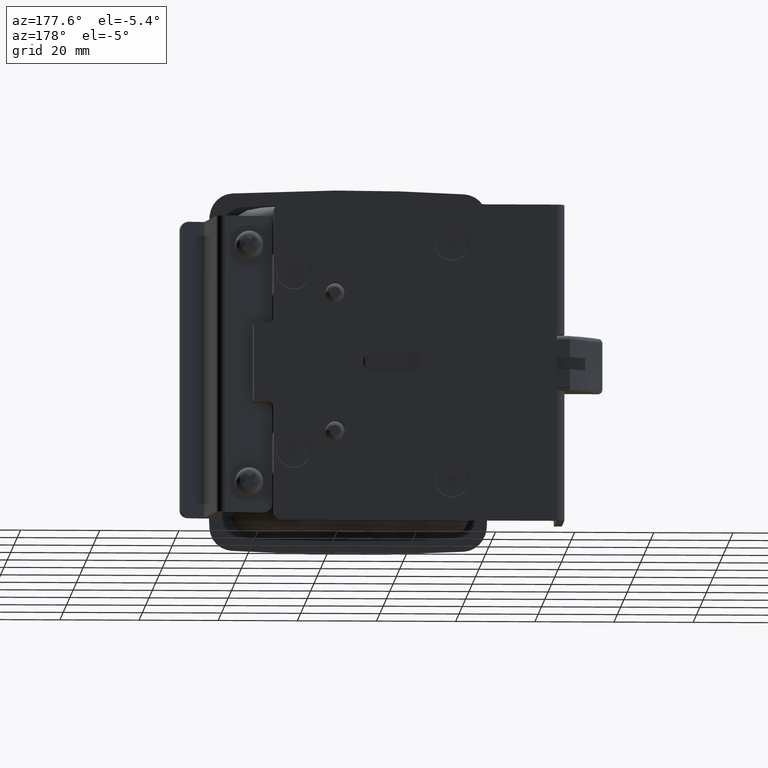
[diagram: clean part render]
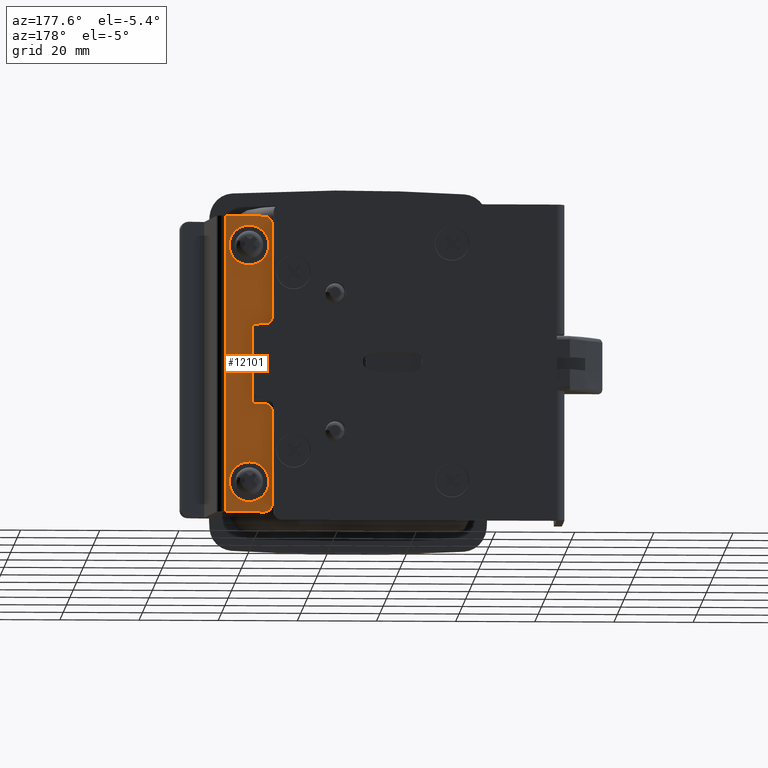
[diagram: same view with one face highlighted and labeled with its STEP entity id]
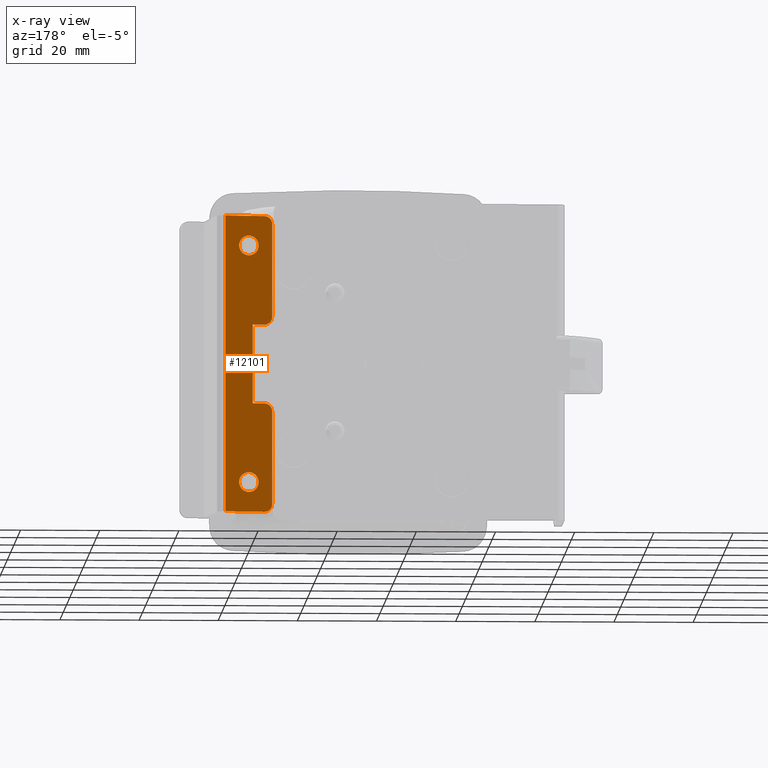
[diagram: x-ray of the same camera — body ghosted, the highlighted face saturated]
A machine part, auxiliary view. The second image highlights one B-rep face of the part: STEP entity #12101.
The next image is the same camera in x-ray: the body ghosted, the highlighted face saturated — about 0% of this face is hidden behind the body in this view.
In plain terms, the highlighted face is a freeform B-spline surface patch.
Its self-contained STEP definition (entity closure, byte-faithful):
#10966=CARTESIAN_POINT('',(76.881491074795775,-7.513873134960039,-30.000000000013749));
#10967=VERTEX_POINT('',#10966);
#10968=CARTESIAN_POINT('',(79.048053428642433,-7.196530977134515,-27.519334465487059));
#10969=VERTEX_POINT('',#10968);
#10970=CARTESIAN_POINT('',(76.881491074795775,-7.513873134960039,-30.000000000013749));
#10971=CARTESIAN_POINT('',(76.881491074795775,-7.513873134960039,-27.793253500170700));
#10972=CARTESIAN_POINT('',(79.048053428642433,-7.196530977134515,-27.519334465487052));
#10980=(BOUNDED_CURVE()B_SPLINE_CURVE(2,(#10970,#10971,#10972),.UNSPECIFIED.,.F.,.U.)B_SPLINE_CURVE_WITH_KNOTS((3,3),(0.0,0.228526070988916),.UNSPECIFIED.)CURVE()GEOMETRIC_REPRESENTATION_ITEM()RATIONAL_B_SPLINE_CURVE((1.0,0.732265053941059,0.954005430196352))REPRESENTATION_ITEM(''));
#10981=EDGE_CURVE('',#10967,#10969,#10980,.T.);
#11022=CARTESIAN_POINT('',(79.376683229631098,-7.148395694996731,-32.499904807670013));
#11023=VERTEX_POINT('',#11022);
#11029=CARTESIAN_POINT('',(79.376683229631098,-7.148395694996731,-32.499904807670013));
#11030=CARTESIAN_POINT('',(79.365890429231499,-7.149976545213992,-32.500000000013756));
#11031=CARTESIAN_POINT('',(79.355097217366207,-7.151557455699730,-32.500000000013749));
#11032=CARTESIAN_POINT('',(76.881491074795775,-7.513873134960039,-32.500000000013749));
#11033=CARTESIAN_POINT('',(76.881491074795775,-7.513873134960039,-30.000000000013749));
#11041=(BOUNDED_CURVE()B_SPLINE_CURVE(2,(#11029,#11030,#11031,#11032,#11033),.UNSPECIFIED.,.F.,.U.)B_SPLINE_CURVE_WITH_KNOTS((3,2,3),(0.748460105597648,0.750000000000000,1.0),.UNSPECIFIED.)CURVE()GEOMETRIC_REPRESENTATION_ITEM()RATIONAL_B_SPLINE_CURVE((0.996414027944504,0.998195901487449,1.0,0.707106781186548,1.0))REPRESENTATION_ITEM(''));
#11042=EDGE_CURVE('',#11023,#10967,#11041,.T.);
#11069=CARTESIAN_POINT('',(81.828703359936640,-6.789241776439421,-30.000000000013749));
#11070=VERTEX_POINT('',#11069);
#11071=CARTESIAN_POINT('',(79.048053428642433,-7.196530977134516,-27.519334465487056));
#11072=CARTESIAN_POINT('',(79.200979365609655,-7.174131507883839,-27.500000000013753));
#11073=CARTESIAN_POINT('',(79.355097217366207,-7.151557455699730,-27.500000000013749));
#11074=CARTESIAN_POINT('',(81.828703359936640,-6.789241776439421,-27.500000000013749));
#11075=CARTESIAN_POINT('',(81.828703359936640,-6.789241776439421,-30.000000000013749));
#11083=(BOUNDED_CURVE()B_SPLINE_CURVE(2,(#11071,#11072,#11073,#11074,#11075),.UNSPECIFIED.,.F.,.U.)B_SPLINE_CURVE_WITH_KNOTS((3,2,3),(0.228526070988916,0.250000000000000,0.500000000000000),.UNSPECIFIED.)CURVE()GEOMETRIC_REPRESENTATION_ITEM()RATIONAL_B_SPLINE_CURVE((0.954005430196352,0.974841727245488,1.0,0.707106781186548,1.0))REPRESENTATION_ITEM(''));
#11084=EDGE_CURVE('',#10969,#11070,#11083,.T.);
#11086=CARTESIAN_POINT('',(81.828703359936640,-6.789241776439421,-30.000000000013749));
#11087=CARTESIAN_POINT('',(81.828703359936640,-6.789241776439421,-32.478278025553358));
#11088=CARTESIAN_POINT('',(79.376683229631098,-7.148395694996731,-32.499904807670006));
#11096=(BOUNDED_CURVE()B_SPLINE_CURVE(2,(#11086,#11087,#11088),.UNSPECIFIED.,.F.,.U.)B_SPLINE_CURVE_WITH_KNOTS((3,3),(0.500000000000000,0.748460105597648),.UNSPECIFIED.)CURVE()GEOMETRIC_REPRESENTATION_ITEM()RATIONAL_B_SPLINE_CURVE((1.0,0.708910879699099,0.996414027944504))REPRESENTATION_ITEM(''));
#11097=EDGE_CURVE('',#11070,#11023,#11096,.T.);
#11152=CARTESIAN_POINT('',(76.881491074795775,-7.513873134960039,29.999999999986251));
#11153=VERTEX_POINT('',#11152);
#11154=CARTESIAN_POINT('',(79.048053428642433,-7.196530977134517,32.480665534512937));
#11155=VERTEX_POINT('',#11154);
#11156=CARTESIAN_POINT('',(76.881491074795775,-7.513873134960039,29.999999999986251));
#11157=CARTESIAN_POINT('',(76.881491074795775,-7.513873134960040,32.206746499829293));
#11158=CARTESIAN_POINT('',(79.048053428642433,-7.196530977134517,32.480665534512951));
#11166=(BOUNDED_CURVE()B_SPLINE_CURVE(2,(#11156,#11157,#11158),.UNSPECIFIED.,.F.,.U.)B_SPLINE_CURVE_WITH_KNOTS((3,3),(0.0,0.228526070988915),.UNSPECIFIED.)CURVE()GEOMETRIC_REPRESENTATION_ITEM()RATIONAL_B_SPLINE_CURVE((1.0,0.732265053941060,0.954005430196350))REPRESENTATION_ITEM(''));
#11167=EDGE_CURVE('',#11153,#11155,#11166,.T.);
#11208=CARTESIAN_POINT('',(79.376683229631098,-7.148395694996731,27.500095192330001));
#11209=VERTEX_POINT('',#11208);
#11215=CARTESIAN_POINT('',(79.376683229631098,-7.148395694996731,27.500095192329994));
#11216=CARTESIAN_POINT('',(79.365890429231499,-7.149976545213992,27.499999999986247));
#11217=CARTESIAN_POINT('',(79.355097217366207,-7.151557455699730,27.499999999986251));
#11218=CARTESIAN_POINT('',(76.881491074795775,-7.513873134960039,27.499999999986258));
#11219=CARTESIAN_POINT('',(76.881491074795775,-7.513873134960039,29.999999999986251));
#11227=(BOUNDED_CURVE()B_SPLINE_CURVE(2,(#11215,#11216,#11217,#11218,#11219),.UNSPECIFIED.,.F.,.U.)B_SPLINE_CURVE_WITH_KNOTS((3,2,3),(0.748460105597648,0.750000000000000,1.0),.UNSPECIFIED.)CURVE()GEOMETRIC_REPRESENTATION_ITEM()RATIONAL_B_SPLINE_CURVE((0.996414027944504,0.998195901487449,1.0,0.707106781186548,1.0))REPRESENTATION_ITEM(''));
#11228=EDGE_CURVE('',#11209,#11153,#11227,.T.);
#11255=CARTESIAN_POINT('',(81.828703359936640,-6.789241776439421,29.999999999986251));
#11256=VERTEX_POINT('',#11255);
#11257=CARTESIAN_POINT('',(79.048053428642433,-7.196530977134517,32.480665534512944));
#11258=CARTESIAN_POINT('',(79.200979365609626,-7.174131507883840,32.499999999986251));
#11259=CARTESIAN_POINT('',(79.355097217366207,-7.151557455699730,32.499999999986251));
#11260=CARTESIAN_POINT('',(81.828703359936640,-6.789241776439421,32.499999999986258));
#11261=CARTESIAN_POINT('',(81.828703359936640,-6.789241776439421,29.999999999986251));
#11269=(BOUNDED_CURVE()B_SPLINE_CURVE(2,(#11257,#11258,#11259,#11260,#11261),.UNSPECIFIED.,.F.,.U.)B_SPLINE_CURVE_WITH_KNOTS((3,2,3),(0.228526070988915,0.250000000000000,0.500000000000000),.UNSPECIFIED.)CURVE()GEOMETRIC_REPRESENTATION_ITEM()RATIONAL_B_SPLINE_CURVE((0.954005430196350,0.974841727245487,1.0,0.707106781186548,1.0))REPRESENTATION_ITEM(''));
#11270=EDGE_CURVE('',#11155,#11256,#11269,.T.);
#11272=CARTESIAN_POINT('',(81.828703359936640,-6.789241776439421,29.999999999986251));
#11273=CARTESIAN_POINT('',(81.828703359936640,-6.789241776439421,27.521721974446645));
#11274=CARTESIAN_POINT('',(79.376683229631098,-7.148395694996731,27.500095192330001));
#11282=(BOUNDED_CURVE()B_SPLINE_CURVE(2,(#11272,#11273,#11274),.UNSPECIFIED.,.F.,.U.)B_SPLINE_CURVE_WITH_KNOTS((3,3),(0.500000000000000,0.748460105597648),.UNSPECIFIED.)CURVE()GEOMETRIC_REPRESENTATION_ITEM()RATIONAL_B_SPLINE_CURVE((1.0,0.708910879699099,0.996414027944504))REPRESENTATION_ITEM(''));
#11283=EDGE_CURVE('',#11256,#11209,#11282,.T.);
#11334=CARTESIAN_POINT('',(75.397327389259502,-7.731262542552380,9.999999999986239));
#11335=VERTEX_POINT('',#11334);
#11336=CARTESIAN_POINT('',(73.418442475203094,-8.021115085960631,11.999999999986240));
#11337=VERTEX_POINT('',#11336);
#11338=CARTESIAN_POINT('',(75.397327389259502,-7.731262542552380,9.999999999986239));
#11339=CARTESIAN_POINT('',(73.418442475203150,-8.021115085960627,9.999999999986239));
#11340=CARTESIAN_POINT('',(73.418442475203150,-8.021115085960627,11.999999999986240));
#11348=(BOUNDED_CURVE()B_SPLINE_CURVE(2,(#11338,#11339,#11340),.UNSPECIFIED.,.F.,.U.)CURVE()GEOMETRIC_REPRESENTATION_ITEM()QUASI_UNIFORM_CURVE()RATIONAL_B_SPLINE_CURVE((1.0,0.707106781186548,1.0))REPRESENTATION_ITEM(''));
#11349=EDGE_CURVE('',#11335,#11337,#11348,.T.);
#11395=CARTESIAN_POINT('',(73.418442475203094,-8.021115085960631,-12.000000000013779));
#11396=VERTEX_POINT('',#11395);
#11397=CARTESIAN_POINT('',(75.397327389254897,-7.731262542553050,-10.000000000013779));
#11398=VERTEX_POINT('',#11397);
#11399=CARTESIAN_POINT('',(73.418442475203094,-8.021115085960631,-12.000000000013779));
#11400=CARTESIAN_POINT('',(73.418442475197750,-8.021115085943228,-10.000000000015596));
#11401=CARTESIAN_POINT('',(75.397327389254897,-7.731262542553050,-10.000000000013779));
#11409=(BOUNDED_CURVE()B_SPLINE_CURVE(2,(#11399,#11400,#11401),.UNSPECIFIED.,.F.,.U.)CURVE()GEOMETRIC_REPRESENTATION_ITEM()QUASI_UNIFORM_CURVE()RATIONAL_B_SPLINE_CURVE((1.0,0.707106781186872,1.0))REPRESENTATION_ITEM(''));
#11410=EDGE_CURVE('',#11396,#11398,#11409,.T.);
#11455=CARTESIAN_POINT('',(78.365654760332788,-7.296483727392610,9.999999999986239));
#11456=VERTEX_POINT('',#11455);
#11457=CARTESIAN_POINT('',(78.365654760332788,-7.296483727392610,9.999999999986239));
#11458=CARTESIAN_POINT('',(75.397327389259502,-7.731262542552380,9.999999999986239));
#11459=QUASI_UNIFORM_CURVE('',1,(#11457,#11458),.UNSPECIFIED.,.F.,.U.);
#11460=EDGE_CURVE('',#11456,#11335,#11459,.T.);
#11475=CARTESIAN_POINT('',(78.365654760332788,-7.296483727392610,-10.000000000013760));
#11476=VERTEX_POINT('',#11475);
#11477=CARTESIAN_POINT('',(75.397327389254897,-7.731262542553050,-10.000000000013779));
#11478=CARTESIAN_POINT('',(78.365654760332788,-7.296483727392610,-10.000000000013760));
#11479=QUASI_UNIFORM_CURVE('',1,(#11477,#11478),.UNSPECIFIED.,.F.,.U.);
#11480=EDGE_CURVE('',#11398,#11476,#11479,.T.);
#11510=CARTESIAN_POINT('',(78.365654760332788,-7.296483727392610,-10.000000000013760));
#11511=CARTESIAN_POINT('',(78.365654760332788,-7.296483727392610,9.999999999986239));
#11512=QUASI_UNIFORM_CURVE('',1,(#11510,#11511),.UNSPECIFIED.,.F.,.U.);
#11513=EDGE_CURVE('',#11476,#11456,#11512,.T.);
#11549=CARTESIAN_POINT('',(75.397327389259502,-7.731262542552380,37.499999999988248));
#11550=VERTEX_POINT('',#11549);
#11556=CARTESIAN_POINT('',(73.418442475203094,-8.021115085960631,35.499999999988198));
#11557=VERTEX_POINT('',#11556);
#11558=CARTESIAN_POINT('',(73.418442475203150,-8.021115085960627,35.499999999988198));
#11559=CARTESIAN_POINT('',(73.418442475203150,-8.021115085960627,37.499999999988212));
#11560=CARTESIAN_POINT('',(75.397327389259502,-7.731262542552380,37.499999999988212));
#11568=(BOUNDED_CURVE()B_SPLINE_CURVE(2,(#11558,#11559,#11560),.UNSPECIFIED.,.F.,.U.)CURVE()GEOMETRIC_REPRESENTATION_ITEM()QUASI_UNIFORM_CURVE()RATIONAL_B_SPLINE_CURVE((1.0,0.707106781186548,1.0))REPRESENTATION_ITEM(''));
#11569=EDGE_CURVE('',#11557,#11550,#11568,.T.);
#11671=CARTESIAN_POINT('',(73.418442475203094,-8.021115085960631,-35.500000000015753));
#11672=VERTEX_POINT('',#11671);
#11678=CARTESIAN_POINT('',(75.397327389259502,-7.731262542552380,-37.500000000015753));
#11679=VERTEX_POINT('',#11678);
#11680=CARTESIAN_POINT('',(75.397327389259402,-7.731262542552390,-37.500000000015753));
#11681=CARTESIAN_POINT('',(74.577646419481781,-7.851323397120416,-37.500000000015753));
#11682=CARTESIAN_POINT('',(73.998044447342437,-7.936219241540523,-36.914213562388881));
#11683=CARTESIAN_POINT('',(73.418442475203051,-8.021115085960636,-36.328427124761966));
#11684=CARTESIAN_POINT('',(73.418442475203051,-8.021115085960636,-35.500000000015753));
#11692=(BOUNDED_CURVE()B_SPLINE_CURVE(2,(#11680,#11681,#11682,#11683,#11684),.UNSPECIFIED.,.F.,.U.)B_SPLINE_CURVE_WITH_KNOTS((3,2,3),(0.0,0.500000000000000,1.0),.UNSPECIFIED.)CURVE()GEOMETRIC_REPRESENTATION_ITEM()RATIONAL_B_SPLINE_CURVE((1.0,0.923879532511291,1.0,0.923879532511291,1.0))REPRESENTATION_ITEM(''));
#11693=EDGE_CURVE('',#11679,#11672,#11692,.T.);
#11812=CARTESIAN_POINT('',(85.291751959530700,-6.281999825512690,-37.500000000015753));
#11813=VERTEX_POINT('',#11812);
#11814=CARTESIAN_POINT('',(75.397327389259502,-7.731262542552380,-37.500000000015753));
#11815=CARTESIAN_POINT('',(85.291751959530700,-6.281999825512690,-37.500000000015753));
#11816=QUASI_UNIFORM_CURVE('',1,(#11814,#11815),.UNSPECIFIED.,.F.,.U.);
#11817=EDGE_CURVE('',#11679,#11813,#11816,.T.);
#11871=CARTESIAN_POINT('',(85.291751959530700,-6.281999825512690,37.499999999988198));
#11872=VERTEX_POINT('',#11871);
#11888=CARTESIAN_POINT('',(75.397327389259502,-7.731262542552380,37.499999999988248));
#11889=CARTESIAN_POINT('',(85.291751959530700,-6.281999825512690,37.499999999988198));
#11890=QUASI_UNIFORM_CURVE('',1,(#11888,#11889),.UNSPECIFIED.,.F.,.U.);
#11891=EDGE_CURVE('',#11550,#11872,#11890,.T.);
#11993=CARTESIAN_POINT('',(85.291751959530700,-6.281999825512690,37.499999999988198));
#11994=CARTESIAN_POINT('',(85.291751959530700,-6.281999825512690,-37.500000000015753));
#11995=QUASI_UNIFORM_CURVE('',1,(#11993,#11994),.UNSPECIFIED.,.F.,.U.);
#11996=EDGE_CURVE('',#11872,#11813,#11995,.T.);
#12062=CARTESIAN_POINT('',(85.884827688714608,-6.195130444015761,-41.246249854651403));
#12063=CARTESIAN_POINT('',(72.825369293755017,-8.107984094283900,-41.246249854651403));
#12064=CARTESIAN_POINT('',(85.884827688714608,-6.195130444015761,41.246251866280652));
#12065=CARTESIAN_POINT('',(72.825369293755017,-8.107984094283900,41.246251866280652));
#12066=B_SPLINE_SURFACE_WITH_KNOTS('',1,1,((#12062,#12064),(#12063,#12065)),.UNSPECIFIED.,.F.,.F.,.U.,(2,2),(2,2),(0.0,13.198805349614970),(0.0,82.492501720932054),.UNSPECIFIED.);
#12067=CARTESIAN_POINT('',(73.418442475203094,-8.021115085960631,-12.000000000013779));
#12068=CARTESIAN_POINT('',(73.418442475203094,-8.021115085960631,-35.500000000015753));
#12069=QUASI_UNIFORM_CURVE('',1,(#12067,#12068),.UNSPECIFIED.,.F.,.U.);
#12070=EDGE_CURVE('',#11396,#11672,#12069,.T.);
#12071=ORIENTED_EDGE('',*,*,#12070,.F.);
#12072=ORIENTED_EDGE('',*,*,#11410,.T.);
#12073=ORIENTED_EDGE('',*,*,#11480,.T.);
#12074=ORIENTED_EDGE('',*,*,#11513,.T.);
#12075=ORIENTED_EDGE('',*,*,#11460,.T.);
#12076=ORIENTED_EDGE('',*,*,#11349,.T.);
#12077=CARTESIAN_POINT('',(73.418442475203094,-8.021115085960631,35.499999999988198));
#12078=CARTESIAN_POINT('',(73.418442475203094,-8.021115085960631,11.999999999986240));
#12079=QUASI_UNIFORM_CURVE('',1,(#12077,#12078),.UNSPECIFIED.,.F.,.U.);
#12080=EDGE_CURVE('',#11557,#11337,#12079,.T.);
#12081=ORIENTED_EDGE('',*,*,#12080,.F.);
#12082=ORIENTED_EDGE('',*,*,#11569,.T.);
#12083=ORIENTED_EDGE('',*,*,#11891,.T.);
#12084=ORIENTED_EDGE('',*,*,#11996,.T.);
#12085=ORIENTED_EDGE('',*,*,#11817,.F.);
#12086=ORIENTED_EDGE('',*,*,#11693,.T.);
#12087=EDGE_LOOP('',(#12071,#12072,#12073,#12074,#12075,#12076,#12081,#12082,#12083,#12084,#12085,#12086));
#12088=FACE_OUTER_BOUND('',#12087,.T.);
#12089=ORIENTED_EDGE('',*,*,#11283,.F.);
#12090=ORIENTED_EDGE('',*,*,#11270,.F.);
#12091=ORIENTED_EDGE('',*,*,#11167,.F.);
#12092=ORIENTED_EDGE('',*,*,#11228,.F.);
#12093=EDGE_LOOP('',(#12089,#12090,#12091,#12092));
#12094=FACE_BOUND('',#12093,.T.);
#12095=ORIENTED_EDGE('',*,*,#11097,.F.);
#12096=ORIENTED_EDGE('',*,*,#11084,.F.);
#12097=ORIENTED_EDGE('',*,*,#10981,.F.);
#12098=ORIENTED_EDGE('',*,*,#11042,.F.);
#12099=EDGE_LOOP('',(#12095,#12096,#12097,#12098));
#12100=FACE_BOUND('',#12099,.T.);
#12101=ADVANCED_FACE('',(#12088,#12094,#12100),#12066,.T.);